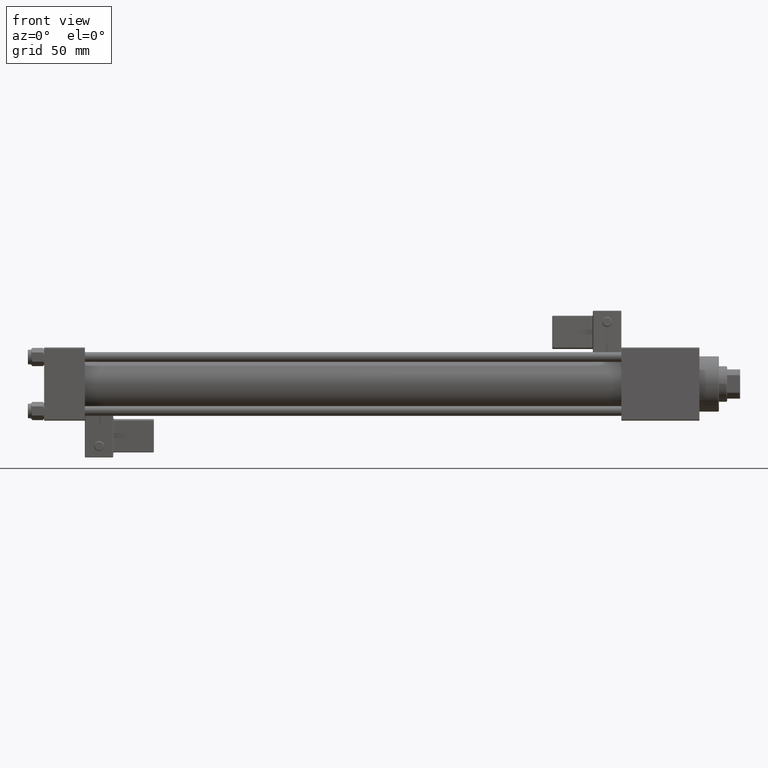
[diagram: clean part render]
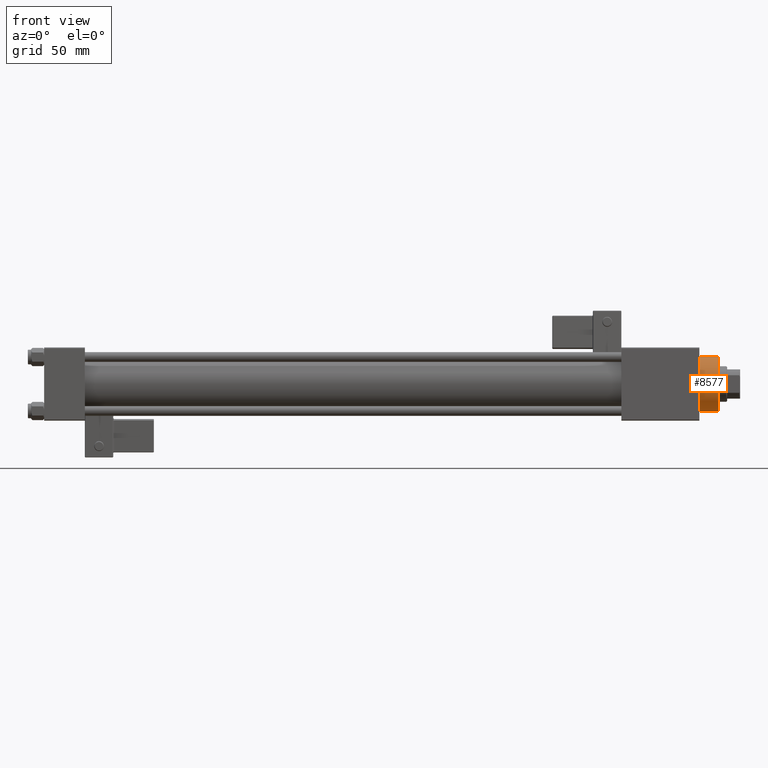
[diagram: same view with one face highlighted and labeled with its STEP entity id]
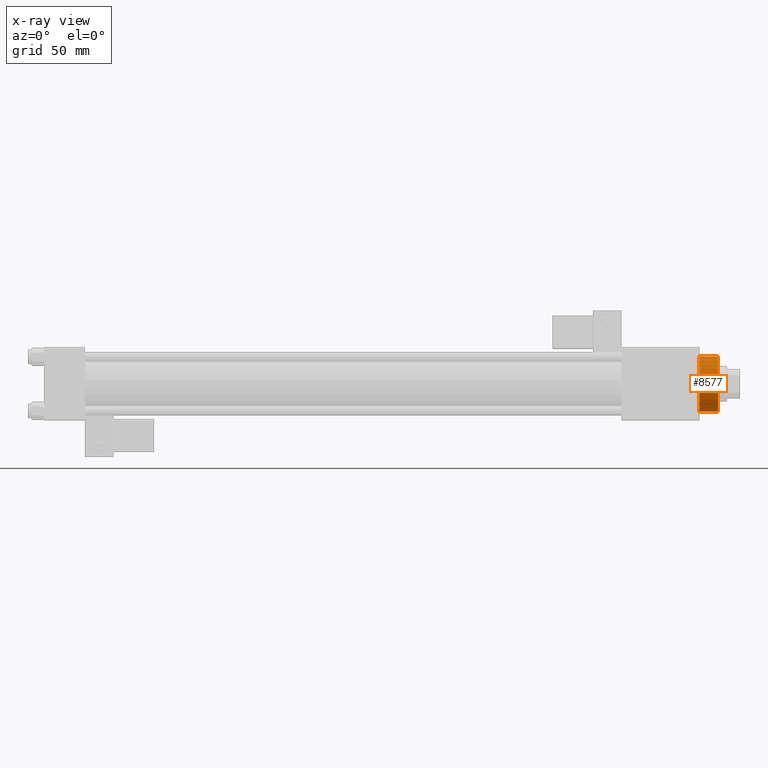
[diagram: x-ray of the same camera — body ghosted, the highlighted face saturated]
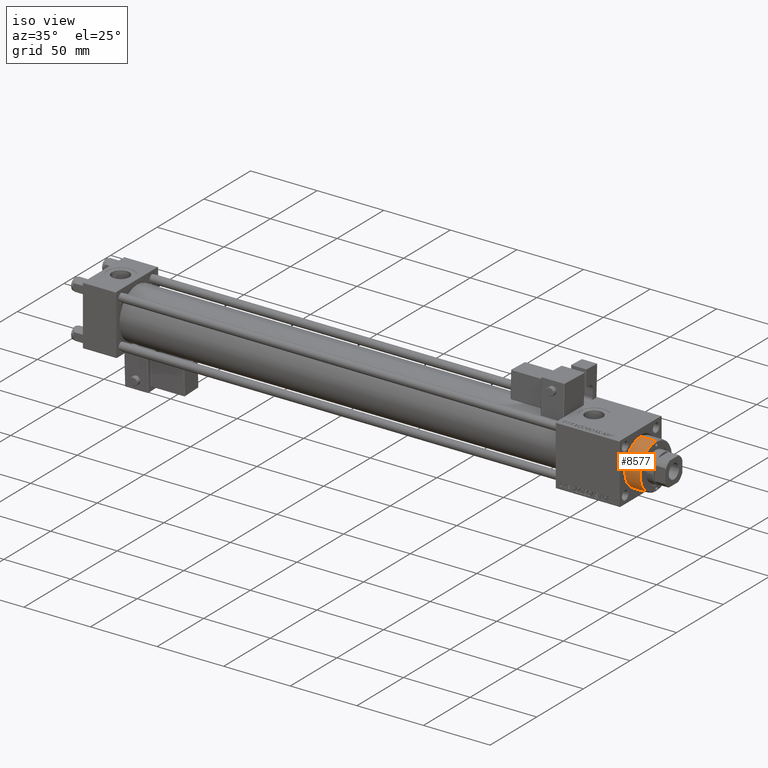
[diagram: same view with one face highlighted and labeled with its STEP entity id]
A machine part, front view. The second image highlights one B-rep face of the part: STEP entity #8577.
The next image is the same camera in x-ray: the body ghosted, the highlighted face saturated — about 0% of this face is hidden behind the body in this view.
A second angle (iso view) of the same face is appended — the face is thin or edge-on in the first view.
In plain terms, the highlighted cylindrical surface (edge-blend (fillet) strip) has radius 17 mm, axis along (-1, -0, -0).
Its self-contained STEP definition (entity closure, byte-faithful):
#1171 = EDGE_CURVE ( 'NONE', #50656, #36912, #34202, .T. ) ;
#3028 = CARTESIAN_POINT ( 'NONE',  ( -17.00000000000000000, 0.000000000000000000, 40.19999999999999574 ) ) ;
#6028 = EDGE_CURVE ( 'NONE', #36912, #6545, #28181, .T. ) ;
#6360 = VERTEX_POINT ( 'NONE', #12960 ) ;
#6545 = VERTEX_POINT ( 'NONE', #30069 ) ;
#7770 = FACE_OUTER_BOUND ( 'NONE', #11782, .T. ) ;
#8577 = ADVANCED_FACE ( 'NONE', ( #7770 ), #49091, .T. ) ;
#11782 = EDGE_LOOP ( 'NONE', ( #28847, #24380, #33445, #16722 ) ) ;
#11861 = DIRECTION ( 'NONE',  ( -1.000000000000000000, 0.000000000000000000, 0.000000000000000000 ) ) ;
#12960 = CARTESIAN_POINT ( 'NONE',  ( 17.00000000000000000, 2.081899558550500280E-15, 40.19999999999999574 ) ) ;
#16195 = VECTOR ( 'NONE', #32987, 1000.000000000000000 ) ;
#16722 = ORIENTED_EDGE ( 'NONE', *, *, #6028, .T. ) ;
#16933 = LINE ( 'NONE', #24561, #16195 ) ;
#23388 = DIRECTION ( 'NONE',  ( 1.000000000000000000, 0.000000000000000000, 0.000000000000000000 ) ) ;
#23557 = CARTESIAN_POINT ( 'NONE',  ( 0.000000000000000000, 0.000000000000000000, 40.70000000000000284 ) ) ;
#23915 = DIRECTION ( 'NONE',  ( 0.000000000000000000, 0.000000000000000000, 1.000000000000000000 ) ) ;
#24380 = ORIENTED_EDGE ( 'NONE', *, *, #53435, .T. ) ;
#24561 = CARTESIAN_POINT ( 'NONE',  ( 17.00000000000000000, 2.081899558550500280E-15, 40.70000000000000284 ) ) ;
#24985 = DIRECTION ( 'NONE',  ( 1.000000000000000000, 0.000000000000000000, 0.000000000000000000 ) ) ;
#26041 = DIRECTION ( 'NONE',  ( -0.000000000000000000, -0.000000000000000000, -1.000000000000000000 ) ) ;
#26464 = CARTESIAN_POINT ( 'NONE',  ( -17.00000000000000000, 0.000000000000000000, 28.69999999999999929 ) ) ;
#26532 = CIRCLE ( 'NONE', #40442, 17.00000000000000000 ) ;
#28181 = CIRCLE ( 'NONE', #42948, 17.00000000000000000 ) ;
#28847 = ORIENTED_EDGE ( 'NONE', *, *, #39349, .F. ) ;
#30069 = CARTESIAN_POINT ( 'NONE',  ( 17.00000000000000000, 2.081899558550500280E-15, 28.69999999999999929 ) ) ;
#32987 = DIRECTION ( 'NONE',  ( -0.000000000000000000, -0.000000000000000000, -1.000000000000000000 ) ) ;
#33145 = DIRECTION ( 'NONE',  ( 0.000000000000000000, 0.000000000000000000, -1.000000000000000000 ) ) ;
#33445 = ORIENTED_EDGE ( 'NONE', *, *, #1171, .T. ) ;
#34202 = LINE ( 'NONE', #42639, #44497 ) ;
#36161 = CARTESIAN_POINT ( 'NONE',  ( 0.000000000000000000, 0.000000000000000000, 28.69999999999999929 ) ) ;
#36912 = VERTEX_POINT ( 'NONE', #26464 ) ;
#39349 = EDGE_CURVE ( 'NONE', #6360, #6545, #16933, .T. ) ;
#40407 = DIRECTION ( 'NONE',  ( -0.000000000000000000, -0.000000000000000000, -1.000000000000000000 ) ) ;
#40442 = AXIS2_PLACEMENT_3D ( 'NONE', #45393, #33145, #24985 ) ;
#42639 = CARTESIAN_POINT ( 'NONE',  ( -17.00000000000000000, 0.000000000000000000, 40.70000000000000284 ) ) ;
#42948 = AXIS2_PLACEMENT_3D ( 'NONE', #36161, #23915, #23388 ) ;
#44497 = VECTOR ( 'NONE', #26041, 1000.000000000000000 ) ;
#45393 = CARTESIAN_POINT ( 'NONE',  ( 0.000000000000000000, 0.000000000000000000, 40.19999999999999574 ) ) ;
#49091 = CYLINDRICAL_SURFACE ( 'NONE', #53440, 17.00000000000000000 ) ;
#50656 = VERTEX_POINT ( 'NONE', #3028 ) ;
#53435 = EDGE_CURVE ( 'NONE', #6360, #50656, #26532, .T. ) ;
#53440 = AXIS2_PLACEMENT_3D ( 'NONE', #23557, #40407, #11861 ) ;